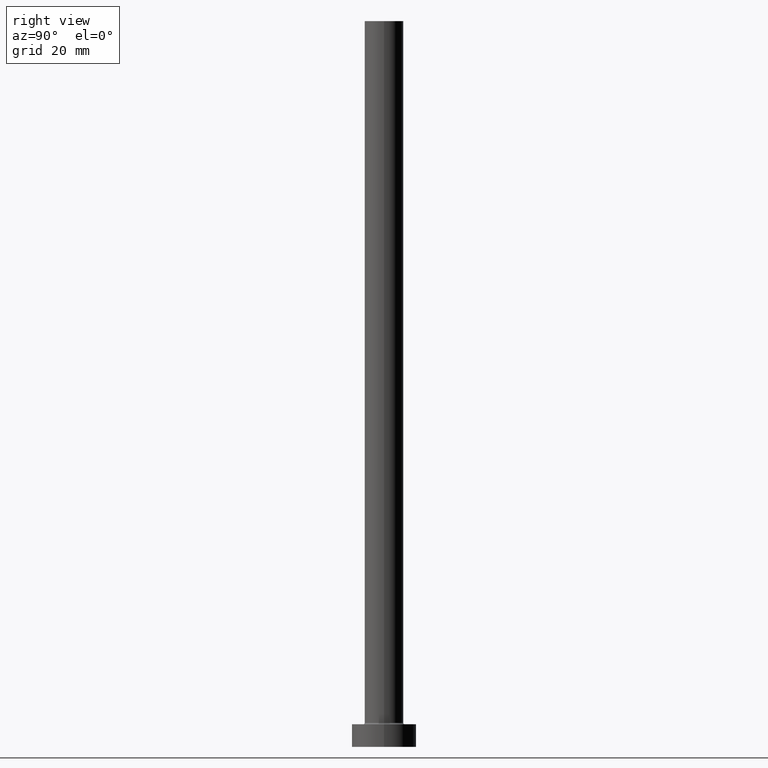
[diagram: clean part render]
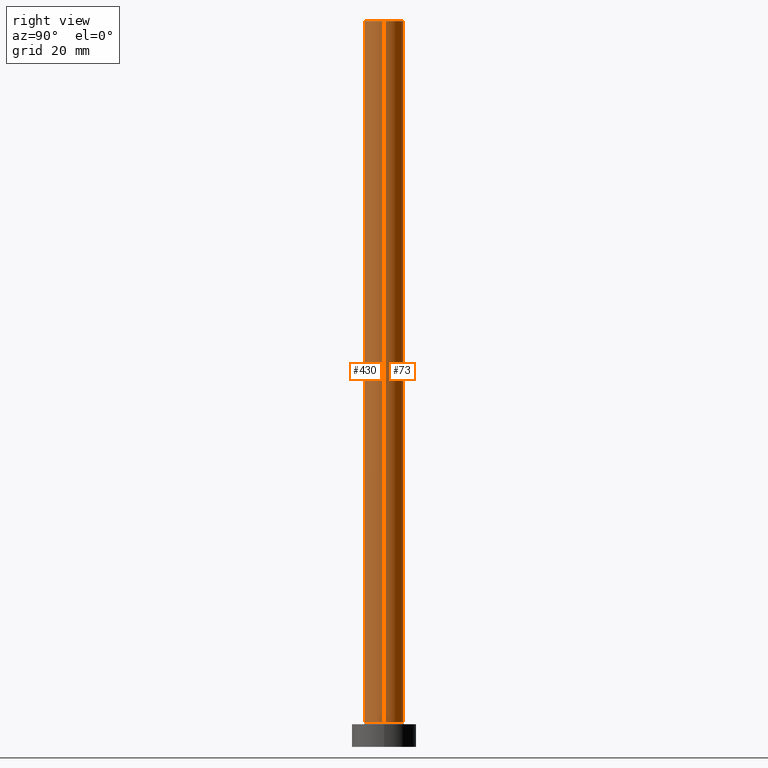
[diagram: same view with one multi-face feature highlighted, each face labeled with its STEP entity id]
A machine part, right view. The highlighted faces form ONE feature: a constant-radius fillet chain: 2 tangent blend faces with common blend radius 6 mm. The faces share edges in the B-rep.
Their STEP definitions:
[1] entity #73 (Cylinder):
#18 = CYLINDRICAL_SURFACE ( 'NONE', #355, 6.000000000000000888 ) ;
#19 = ORIENTED_EDGE ( 'NONE', *, *, #23, .F. ) ;
#23 = EDGE_CURVE ( 'NONE', #328, #188, #286, .T. ) ;
#31 = CARTESIAN_POINT ( 'NONE',  ( -6.000000000000000888, 0.000000000000000000, 225.0000000000000000 ) ) ;
#37 = DIRECTION ( 'NONE',  ( -0.000000000000000000, -0.000000000000000000, -1.000000000000000000 ) ) ;
#46 = ORIENTED_EDGE ( 'NONE', *, *, #375, .T. ) ;
#64 = DIRECTION ( 'NONE',  ( 0.000000000000000000, 0.000000000000000000, 1.000000000000000000 ) ) ;
#71 = LINE ( 'NONE', #31, #441 ) ;
#73 = ADVANCED_FACE ( 'NONE', ( #434 ), #18, .T. ) ;
#100 = CARTESIAN_POINT ( 'NONE',  ( -6.000000000000000888, 0.000000000000000000, 7.500000000000007105 ) ) ;
#130 = CARTESIAN_POINT ( 'NONE',  ( 0.000000000000000000, 0.000000000000000000, 7.500000000000007105 ) ) ;
#147 = AXIS2_PLACEMENT_3D ( 'NONE', #130, #409, #166 ) ;
#148 = LINE ( 'NONE', #454, #225 ) ;
#154 = CARTESIAN_POINT ( 'NONE',  ( -6.000000000000000888, 0.000000000000000000, 225.0000000000000000 ) ) ;
#155 = CIRCLE ( 'NONE', #147, 6.000000000000000888 ) ;
#166 = DIRECTION ( 'NONE',  ( 1.000000000000000000, 0.000000000000000000, 0.000000000000000000 ) ) ;
#172 = CARTESIAN_POINT ( 'NONE',  ( 6.000000000000000888, 7.347880794884120722E-16, 225.0000000000000000 ) ) ;
#188 = VERTEX_POINT ( 'NONE', #154 ) ;
#199 = CARTESIAN_POINT ( 'NONE',  ( 6.000000000000000888, 7.347880794884120722E-16, 7.500000000000007105 ) ) ;
#222 = DIRECTION ( 'NONE',  ( -0.000000000000000000, -0.000000000000000000, -1.000000000000000000 ) ) ;
#224 = ORIENTED_EDGE ( 'NONE', *, *, #444, .T. ) ;
#225 = VECTOR ( 'NONE', #37, 1000.000000000000000 ) ;
#229 = CARTESIAN_POINT ( 'NONE',  ( 0.000000000000000000, 0.000000000000000000, 225.0000000000000000 ) ) ;
#286 = CIRCLE ( 'NONE', #287, 6.000000000000000888 ) ;
#287 = AXIS2_PLACEMENT_3D ( 'NONE', #376, #64, #333 ) ;
#319 = VERTEX_POINT ( 'NONE', #100 ) ;
#328 = VERTEX_POINT ( 'NONE', #172 ) ;
#333 = DIRECTION ( 'NONE',  ( 1.000000000000000000, 0.000000000000000000, 0.000000000000000000 ) ) ;
#344 = EDGE_CURVE ( 'NONE', #188, #319, #71, .T. ) ;
#355 = AXIS2_PLACEMENT_3D ( 'NONE', #229, #222, #360 ) ;
#360 = DIRECTION ( 'NONE',  ( -1.000000000000000000, 0.000000000000000000, 0.000000000000000000 ) ) ;
#367 = ORIENTED_EDGE ( 'NONE', *, *, #344, .F. ) ;
#375 = EDGE_CURVE ( 'NONE', #382, #319, #155, .T. ) ;
#376 = CARTESIAN_POINT ( 'NONE',  ( 0.000000000000000000, 0.000000000000000000, 225.0000000000000000 ) ) ;
#382 = VERTEX_POINT ( 'NONE', #199 ) ;
#394 = EDGE_LOOP ( 'NONE', ( #19, #224, #46, #367 ) ) ;
#409 = DIRECTION ( 'NONE',  ( 0.000000000000000000, 0.000000000000000000, 1.000000000000000000 ) ) ;
#419 = DIRECTION ( 'NONE',  ( -0.000000000000000000, -0.000000000000000000, -1.000000000000000000 ) ) ;
#434 = FACE_OUTER_BOUND ( 'NONE', #394, .T. ) ;
#441 = VECTOR ( 'NONE', #419, 1000.000000000000000 ) ;
#444 = EDGE_CURVE ( 'NONE', #328, #382, #148, .T. ) ;
#454 = CARTESIAN_POINT ( 'NONE',  ( 6.000000000000000888, 7.347880794884120722E-16, 225.0000000000000000 ) ) ;
[2] entity #430 (Cylinder):
#7 = EDGE_CURVE ( 'NONE', #319, #382, #361, .T. ) ;
#24 = DIRECTION ( 'NONE',  ( 1.000000000000000000, 0.000000000000000000, 0.000000000000000000 ) ) ;
#31 = CARTESIAN_POINT ( 'NONE',  ( -6.000000000000000888, 0.000000000000000000, 225.0000000000000000 ) ) ;
#32 = DIRECTION ( 'NONE',  ( 0.000000000000000000, 0.000000000000000000, 1.000000000000000000 ) ) ;
#34 = CARTESIAN_POINT ( 'NONE',  ( 0.000000000000000000, 0.000000000000000000, 7.500000000000007105 ) ) ;
#37 = DIRECTION ( 'NONE',  ( -0.000000000000000000, -0.000000000000000000, -1.000000000000000000 ) ) ;
#39 = DIRECTION ( 'NONE',  ( -0.000000000000000000, -0.000000000000000000, -1.000000000000000000 ) ) ;
#59 = AXIS2_PLACEMENT_3D ( 'NONE', #34, #272, #351 ) ;
#71 = LINE ( 'NONE', #31, #441 ) ;
#77 = FACE_OUTER_BOUND ( 'NONE', #165, .T. ) ;
#100 = CARTESIAN_POINT ( 'NONE',  ( -6.000000000000000888, 0.000000000000000000, 7.500000000000007105 ) ) ;
#104 = CYLINDRICAL_SURFACE ( 'NONE', #399, 6.000000000000000888 ) ;
#133 = CARTESIAN_POINT ( 'NONE',  ( 0.000000000000000000, 0.000000000000000000, 225.0000000000000000 ) ) ;
#140 = ORIENTED_EDGE ( 'NONE', *, *, #299, .F. ) ;
#143 = CARTESIAN_POINT ( 'NONE',  ( 0.000000000000000000, 0.000000000000000000, 225.0000000000000000 ) ) ;
#148 = LINE ( 'NONE', #454, #225 ) ;
#154 = CARTESIAN_POINT ( 'NONE',  ( -6.000000000000000888, 0.000000000000000000, 225.0000000000000000 ) ) ;
#165 = EDGE_LOOP ( 'NONE', ( #392, #140, #383, #359 ) ) ;
#172 = CARTESIAN_POINT ( 'NONE',  ( 6.000000000000000888, 7.347880794884120722E-16, 225.0000000000000000 ) ) ;
#188 = VERTEX_POINT ( 'NONE', #154 ) ;
#199 = CARTESIAN_POINT ( 'NONE',  ( 6.000000000000000888, 7.347880794884120722E-16, 7.500000000000007105 ) ) ;
#225 = VECTOR ( 'NONE', #37, 1000.000000000000000 ) ;
#272 = DIRECTION ( 'NONE',  ( 0.000000000000000000, 0.000000000000000000, 1.000000000000000000 ) ) ;
#299 = EDGE_CURVE ( 'NONE', #188, #328, #339, .T. ) ;
#316 = DIRECTION ( 'NONE',  ( -1.000000000000000000, 0.000000000000000000, 0.000000000000000000 ) ) ;
#319 = VERTEX_POINT ( 'NONE', #100 ) ;
#328 = VERTEX_POINT ( 'NONE', #172 ) ;
#339 = CIRCLE ( 'NONE', #452, 6.000000000000000888 ) ;
#344 = EDGE_CURVE ( 'NONE', #188, #319, #71, .T. ) ;
#351 = DIRECTION ( 'NONE',  ( 1.000000000000000000, 0.000000000000000000, 0.000000000000000000 ) ) ;
#359 = ORIENTED_EDGE ( 'NONE', *, *, #7, .T. ) ;
#361 = CIRCLE ( 'NONE', #59, 6.000000000000000888 ) ;
#382 = VERTEX_POINT ( 'NONE', #199 ) ;
#383 = ORIENTED_EDGE ( 'NONE', *, *, #344, .T. ) ;
#392 = ORIENTED_EDGE ( 'NONE', *, *, #444, .F. ) ;
#399 = AXIS2_PLACEMENT_3D ( 'NONE', #143, #39, #316 ) ;
#419 = DIRECTION ( 'NONE',  ( -0.000000000000000000, -0.000000000000000000, -1.000000000000000000 ) ) ;
#430 = ADVANCED_FACE ( 'NONE', ( #77 ), #104, .T. ) ;
#441 = VECTOR ( 'NONE', #419, 1000.000000000000000 ) ;
#444 = EDGE_CURVE ( 'NONE', #328, #382, #148, .T. ) ;
#452 = AXIS2_PLACEMENT_3D ( 'NONE', #133, #32, #24 ) ;
#454 = CARTESIAN_POINT ( 'NONE',  ( 6.000000000000000888, 7.347880794884120722E-16, 225.0000000000000000 ) ) ;